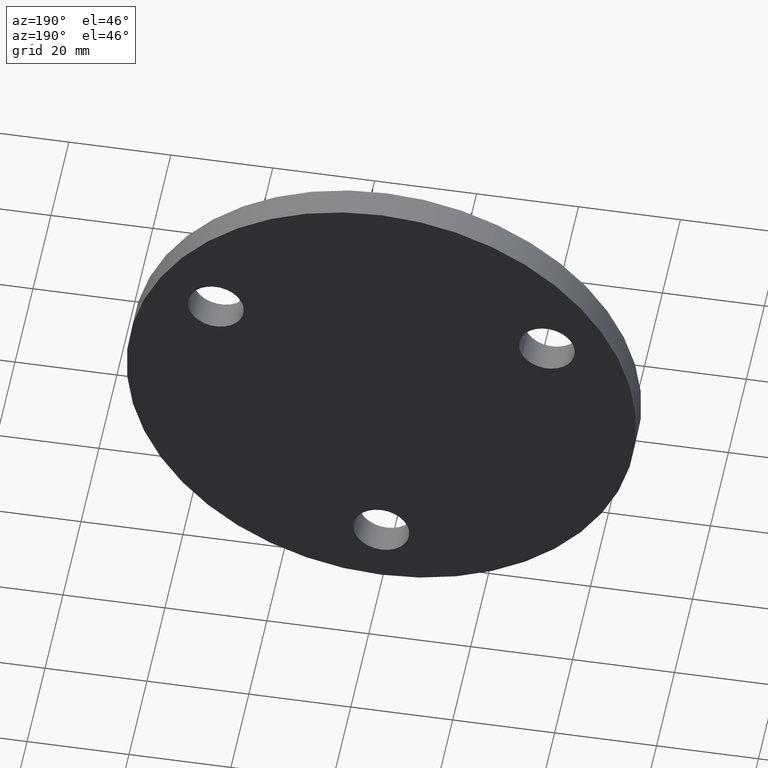
[diagram: clean part render]
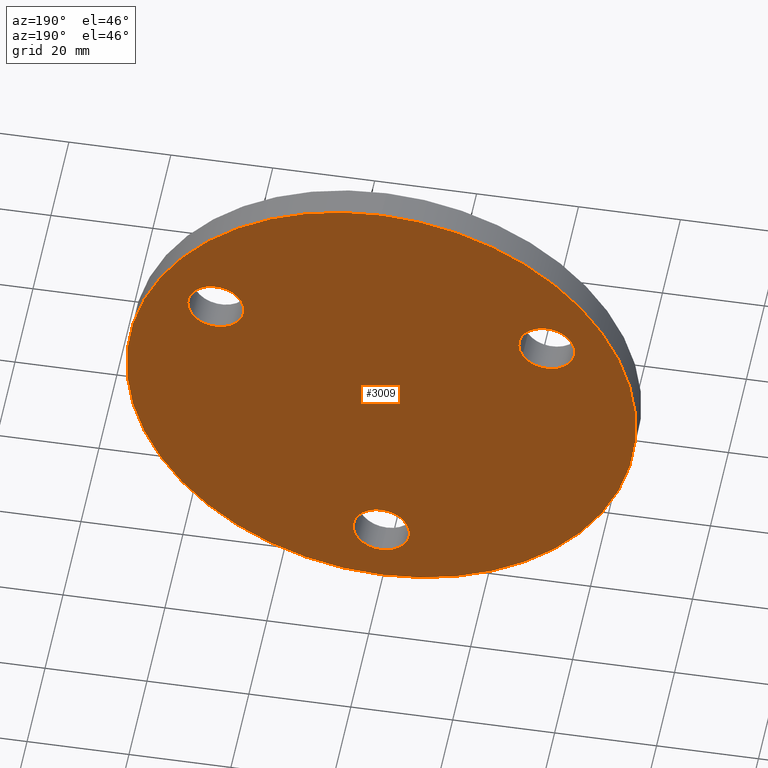
[diagram: same view with one face highlighted and labeled with its STEP entity id]
A machine part, auxiliary view. The second image highlights one B-rep face of the part: STEP entity #3009.
In plain terms, the highlighted planar face has unit normal (0, 1, 0).
Its self-contained STEP definition (entity closure, byte-faithful):
#92 = FACE_BOUND ( 'NONE', #2113, .T. ) ;
#151 = VERTEX_POINT ( 'NONE', #2631 ) ;
#197 = ORIENTED_EDGE ( 'NONE', *, *, #6092, .F. ) ;
#330 = DIRECTION ( 'NONE',  ( 0.0000000000000000000, 0.0000000000000000000, 1.000000000000000000 ) ) ;
#388 = DIRECTION ( 'NONE',  ( 0.0000000000000000000, -0.0000000000000000000, 1.000000000000000000 ) ) ;
#429 = EDGE_CURVE ( 'NONE', #3999, #9859, #3240, .T. ) ;
#637 = DIRECTION ( 'NONE',  ( 0.0000000000000000000, 1.000000000000000000, 0.0000000000000000000 ) ) ;
#693 = DIRECTION ( 'NONE',  ( 0.0000000000000000000, 1.000000000000000000, 0.0000000000000000000 ) ) ;
#714 = CARTESIAN_POINT ( 'NONE',  ( 0.0000000000000000000, 6.000000000000000000, -37.50000000000000000 ) ) ;
#764 = ORIENTED_EDGE ( 'NONE', *, *, #4917, .T. ) ;
#955 = CIRCLE ( 'NONE', #8545, 5.499999999999996400 ) ;
#1172 = CARTESIAN_POINT ( 'NONE',  ( 0.0000000000000000000, 6.000000000000000000, -37.50000000000000000 ) ) ;
#1238 = AXIS2_PLACEMENT_3D ( 'NONE', #9971, #9157, #2020 ) ;
#1284 = ORIENTED_EDGE ( 'NONE', *, *, #429, .F. ) ;
#1426 = CARTESIAN_POINT ( 'NONE',  ( 0.0000000000000000000, 6.000000000000000000, -32.00000000000000000 ) ) ;
#1512 = EDGE_CURVE ( 'NONE', #11405, #151, #4794, .T. ) ;
#1565 = DIRECTION ( 'NONE',  ( 0.0000000000000000000, 0.0000000000000000000, 1.000000000000000000 ) ) ;
#1668 = DIRECTION ( 'NONE',  ( 0.0000000000000000000, 1.000000000000000000, 0.0000000000000000000 ) ) ;
#1705 = CARTESIAN_POINT ( 'NONE',  ( 32.47595264191637200, 6.000000000000000000, 18.75000000000015300 ) ) ;
#1931 = VERTEX_POINT ( 'NONE', #8542 ) ;
#2020 = DIRECTION ( 'NONE',  ( 0.0000000000000000000, 0.0000000000000000000, 1.000000000000000000 ) ) ;
#2113 = EDGE_LOOP ( 'NONE', ( #1284, #5414 ) ) ;
#2313 = EDGE_CURVE ( 'NONE', #3592, #6658, #5482, .T. ) ;
#2582 = CIRCLE ( 'NONE', #5039, 5.499999999999998200 ) ;
#2631 = CARTESIAN_POINT ( 'NONE',  ( 27.71281292110196800, 6.000000000000000000, 16.00000000000012800 ) ) ;
#2761 = CARTESIAN_POINT ( 'NONE',  ( 6.123233995736766100E-015, 6.000000000000000000, 50.00000000000000000 ) ) ;
#2809 = DIRECTION ( 'NONE',  ( 0.8660254037844433700, 0.0000000000000000000, -0.4999999999999919500 ) ) ;
#2812 = CARTESIAN_POINT ( 'NONE',  ( -32.47595264191662100, 6.000000000000000000, 18.74999999999969800 ) ) ;
#2910 = ORIENTED_EDGE ( 'NONE', *, *, #8795, .F. ) ;
#2936 = EDGE_CURVE ( 'NONE', #8830, #1931, #955, .T. ) ;
#3009 = ADVANCED_FACE ( 'NONE', ( #6165, #9723, #92, #4642 ), #10306, .T. ) ;
#3240 = CIRCLE ( 'NONE', #10795, 5.499999999999998200 ) ;
#3592 = VERTEX_POINT ( 'NONE', #2761 ) ;
#3999 = VERTEX_POINT ( 'NONE', #1426 ) ;
#4319 = CARTESIAN_POINT ( 'NONE',  ( 0.0000000000000000000, 6.000000000000000000, -50.00000000000000000 ) ) ;
#4441 = AXIS2_PLACEMENT_3D ( 'NONE', #2812, #6385, #9076 ) ;
#4572 = EDGE_LOOP ( 'NONE', ( #197, #5405 ) ) ;
#4642 = FACE_OUTER_BOUND ( 'NONE', #10215, .T. ) ;
#4789 = AXIS2_PLACEMENT_3D ( 'NONE', #1705, #1668, #7962 ) ;
#4794 = CIRCLE ( 'NONE', #4789, 5.500000000000001800 ) ;
#4875 = DIRECTION ( 'NONE',  ( 0.0000000000000000000, 1.000000000000000000, 0.0000000000000000000 ) ) ;
#4917 = EDGE_CURVE ( 'NONE', #6658, #3592, #7684, .T. ) ;
#5039 = AXIS2_PLACEMENT_3D ( 'NONE', #714, #637, #7814 ) ;
#5260 = CARTESIAN_POINT ( 'NONE',  ( 37.23909236273077300, 6.000000000000000000, 21.50000000000017400 ) ) ;
#5405 = ORIENTED_EDGE ( 'NONE', *, *, #1512, .F. ) ;
#5414 = ORIENTED_EDGE ( 'NONE', *, *, #7648, .F. ) ;
#5482 = CIRCLE ( 'NONE', #9234, 50.00000000000000000 ) ;
#5520 = CARTESIAN_POINT ( 'NONE',  ( -32.47595264191662100, 6.000000000000000000, 18.74999999999969800 ) ) ;
#5676 = CIRCLE ( 'NONE', #4441, 5.499999999999996400 ) ;
#6092 = EDGE_CURVE ( 'NONE', #151, #11405, #6274, .T. ) ;
#6165 = FACE_BOUND ( 'NONE', #7093, .T. ) ;
#6274 = CIRCLE ( 'NONE', #8249, 5.500000000000001800 ) ;
#6385 = DIRECTION ( 'NONE',  ( 0.0000000000000000000, 1.000000000000000000, 0.0000000000000000000 ) ) ;
#6658 = VERTEX_POINT ( 'NONE', #4319 ) ;
#6731 = DIRECTION ( 'NONE',  ( 0.0000000000000000000, 1.000000000000000000, 0.0000000000000000000 ) ) ;
#6928 = CARTESIAN_POINT ( 'NONE',  ( 6.735557395310443000E-016, 6.000000000000000000, -43.00000000000000000 ) ) ;
#6961 = DIRECTION ( 'NONE',  ( -0.8660254037844362700, 0.0000000000000000000, -0.5000000000000040000 ) ) ;
#7093 = EDGE_LOOP ( 'NONE', ( #2910, #7238 ) ) ;
#7238 = ORIENTED_EDGE ( 'NONE', *, *, #2936, .F. ) ;
#7298 = DIRECTION ( 'NONE',  ( 0.0000000000000000000, 1.000000000000000000, 0.0000000000000000000 ) ) ;
#7648 = EDGE_CURVE ( 'NONE', #9859, #3999, #2582, .T. ) ;
#7684 = CIRCLE ( 'NONE', #1238, 50.00000000000000000 ) ;
#7814 = DIRECTION ( 'NONE',  ( 0.0000000000000000000, 0.0000000000000000000, 1.000000000000000000 ) ) ;
#7962 = DIRECTION ( 'NONE',  ( -0.8660254037844362700, 0.0000000000000000000, -0.5000000000000040000 ) ) ;
#8249 = AXIS2_PLACEMENT_3D ( 'NONE', #9748, #693, #6961 ) ;
#8542 = CARTESIAN_POINT ( 'NONE',  ( -27.71281292110218400, 6.000000000000000000, 15.99999999999974400 ) ) ;
#8545 = AXIS2_PLACEMENT_3D ( 'NONE', #5520, #7298, #2809 ) ;
#8795 = EDGE_CURVE ( 'NONE', #1931, #8830, #5676, .T. ) ;
#8801 = CARTESIAN_POINT ( 'NONE',  ( 0.0000000000000000000, 6.000000000000000000, 0.0000000000000000000 ) ) ;
#8830 = VERTEX_POINT ( 'NONE', #10858 ) ;
#9076 = DIRECTION ( 'NONE',  ( 0.8660254037844433700, 0.0000000000000000000, -0.4999999999999919500 ) ) ;
#9157 = DIRECTION ( 'NONE',  ( 0.0000000000000000000, 1.000000000000000000, 0.0000000000000000000 ) ) ;
#9234 = AXIS2_PLACEMENT_3D ( 'NONE', #8801, #9704, #1565 ) ;
#9704 = DIRECTION ( 'NONE',  ( 0.0000000000000000000, 1.000000000000000000, 0.0000000000000000000 ) ) ;
#9723 = FACE_BOUND ( 'NONE', #4572, .T. ) ;
#9748 = CARTESIAN_POINT ( 'NONE',  ( 32.47595264191637200, 6.000000000000000000, 18.75000000000015300 ) ) ;
#9859 = VERTEX_POINT ( 'NONE', #6928 ) ;
#9971 = CARTESIAN_POINT ( 'NONE',  ( 0.0000000000000000000, 6.000000000000000000, 0.0000000000000000000 ) ) ;
#10215 = EDGE_LOOP ( 'NONE', ( #764, #11185 ) ) ;
#10306 = PLANE ( 'NONE',  #10978 ) ;
#10795 = AXIS2_PLACEMENT_3D ( 'NONE', #1172, #6731, #330 ) ;
#10858 = CARTESIAN_POINT ( 'NONE',  ( -37.23909236273105700, 6.000000000000000000, 21.49999999999965200 ) ) ;
#10978 = AXIS2_PLACEMENT_3D ( 'NONE', #11128, #4875, #388 ) ;
#11128 = CARTESIAN_POINT ( 'NONE',  ( 0.0000000000000000000, 6.000000000000000000, 0.0000000000000000000 ) ) ;
#11185 = ORIENTED_EDGE ( 'NONE', *, *, #2313, .T. ) ;
#11405 = VERTEX_POINT ( 'NONE', #5260 ) ;